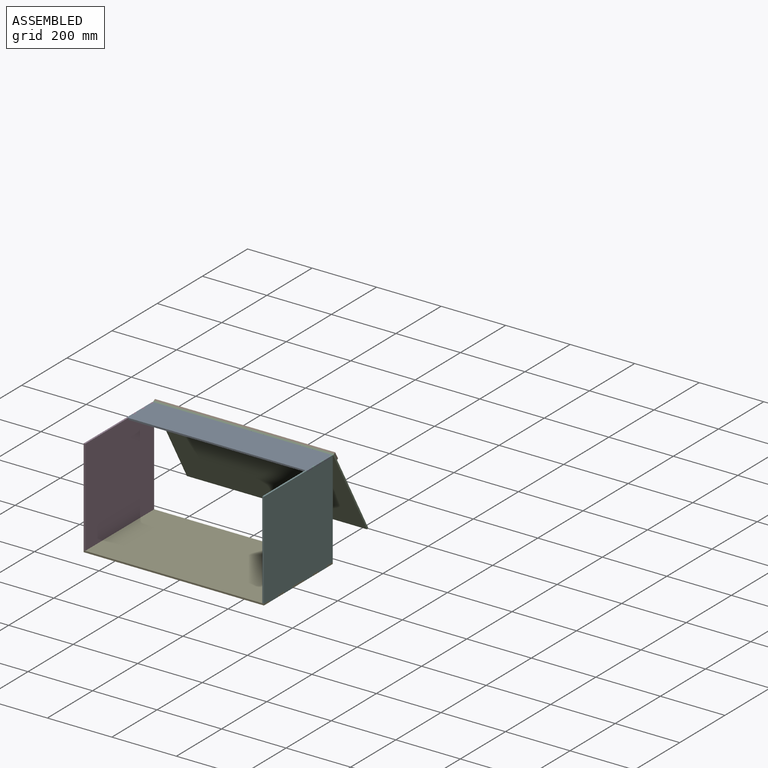
[diagram: assembled view]
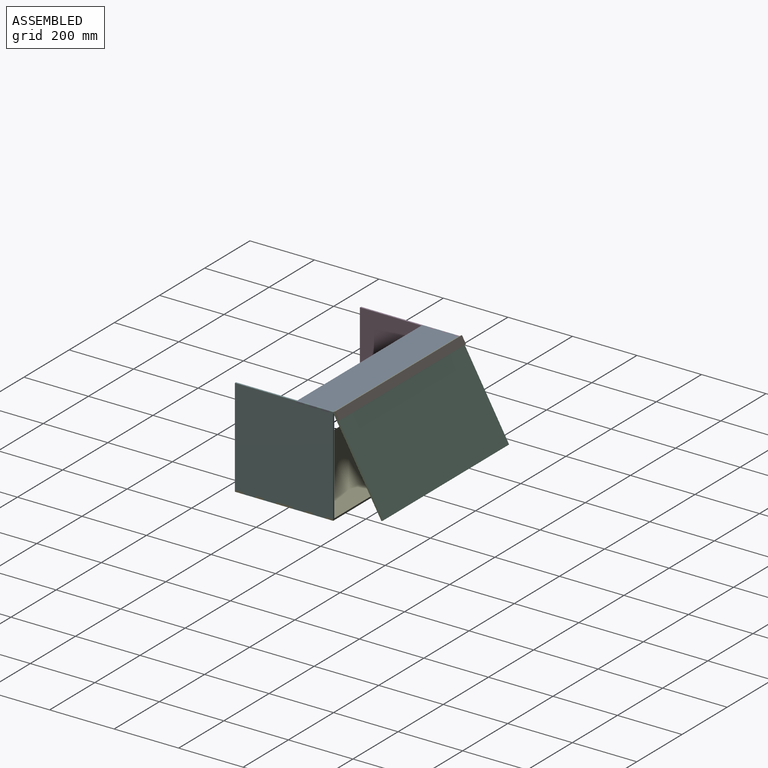
[diagram: assembled view, second angle]
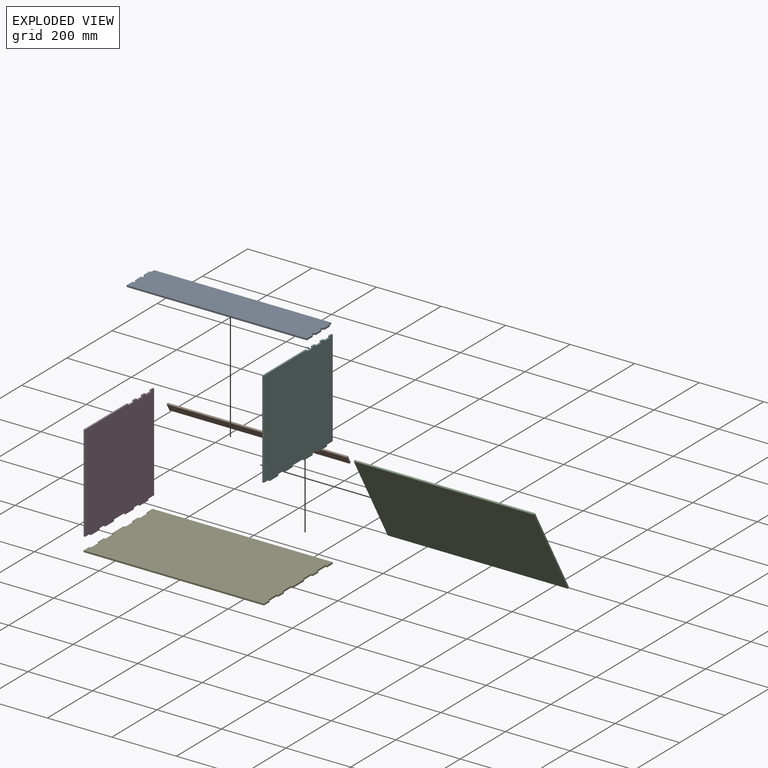
[diagram: exploded view]
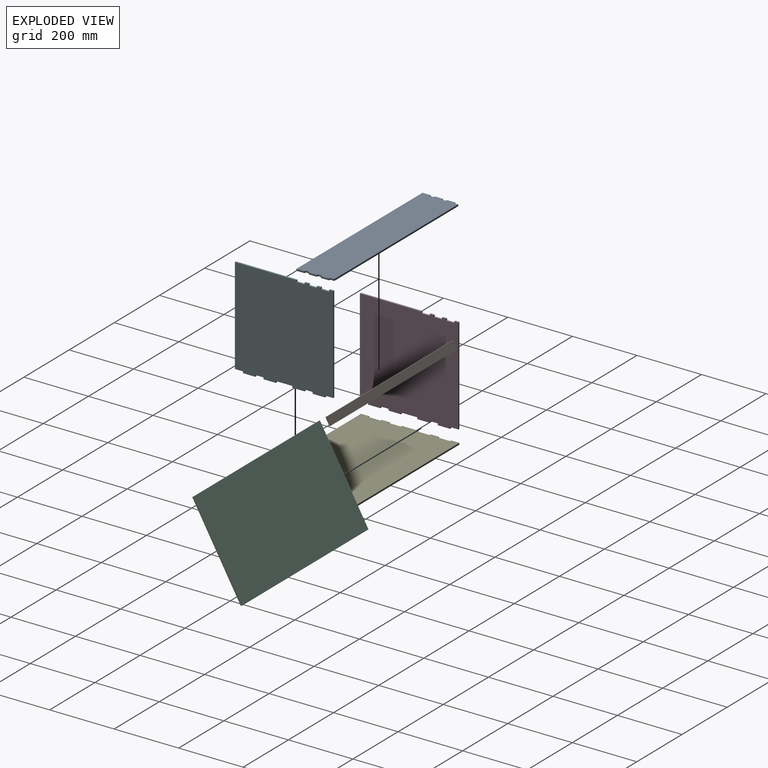
[diagram: exploded view, second angle]
ASSEMBLY  parts=6 mates=4
PART A: 26 faces, bbox 558.8x114.3x5.1 mm
  f0: plane 12.7x5.08mm, normal (1,0,0), area 64.5mm2, adj f1,f23,f24,f25
  f1: plane 548.64x5.08mm, normal (0,1,0), area 2787.1mm2, adj f0,f2,f24,f25
  f2: plane 12.7x5.08mm, normal (-1,0,0), area 64.5mm2, adj f1,f3,f24,f25
  f3: plane 5.08x5.08mm, normal (0,1,0), area 25.8mm2, adj f2,f4,f24,f25
  f4: plane 25.4x5.08mm, normal (-1,0,0), area 129mm2, adj f3,f5,f24,f25
  f5: plane 5.08x5.08mm, normal (0,-1,0), area 25.8mm2, adj f4,f6,f24,f25
  f6: plane 12.7x5.08mm, normal (-1,0,0), area 64.5mm2, adj f5,f7,f24,f25
  f7: plane 5.08x5.08mm, normal (0,1,0), area 25.8mm2, adj f6,f8,f24,f25
  f8: plane 25.4x5.08mm, normal (-1,0,0), area 129mm2, adj f7,f9,f24,f25
  f9: plane 5.08x5.08mm, normal (0,-1,0), area 25.8mm2, adj f8,f10,f24,f25
  f10: plane 12.7x5.08mm, normal (-1,0,0), area 64.5mm2, adj f9,f11,f24,f25
  f11: plane 5.08x5.08mm, normal (0,1,0), area 25.8mm2, adj f10,f12,f24,f25
  f12: plane 25.4x5.08mm, normal (-1,0,0), area 129mm2, adj f11,f13,f24,f25
  f13: plane 558.8x5.08mm, normal (0,-1,0), area 2838.7mm2, adj f12,f14,f24,f25
  f14: plane 25.4x5.08mm, normal (1,0,0), area 129mm2, adj f13,f15,f24,f25
  f15: plane 5.08x5.08mm, normal (0,1,0), area 25.8mm2, adj f14,f16,f24,f25
  f16: plane 12.7x5.08mm, normal (1,0,0), area 64.5mm2, adj f15,f17,f24,f25
  f17: plane 5.08x5.08mm, normal (0,-1,0), area 25.8mm2, adj f16,f18,f24,f25
  f18: plane 25.4x5.08mm, normal (1,0,0), area 129mm2, adj f17,f19,f24,f25
  f19: plane 5.08x5.08mm, normal (0,1,0), area 25.8mm2, adj f18,f20,f24,f25
  f20: plane 12.7x5.08mm, normal (1,0,0), area 64.5mm2, adj f19,f21,f24,f25
  f21: plane 5.08x5.08mm, normal (0,-1,0), area 25.8mm2, adj f20,f22,f24,f25
  f22: plane 25.4x5.08mm, normal (1,0,0), area 129mm2, adj f21,f23,f24,f25
  f23: plane 5.08x5.08mm, normal (0,1,0), area 25.8mm2, adj f0,f22,f24,f25
  f24: plane 558.8x114.3mm, normal (0,0,1), area 63483.7mm2, adj f0,f1,f2,f3,f4,f5,f6,f7
  f25: plane 558.8x114.3mm, normal (0,0,-1), area 63483.7mm2, adj f0,f1,f2,f3,f4,f5,f6,f7
PART B: 6 faces, bbox 558.8x25.4x5.1 mm
  f0: plane 558.8x5.08mm, normal (0,-1,0), area 2838.7mm2, adj f1,f3,f4,f5
  f1: plane 25.4x5.08mm, normal (1,0,0), area 129mm2, adj f0,f2,f4,f5
  f2: plane 558.8x5.08mm, normal (0,1,0), area 2838.7mm2, adj f1,f3,f4,f5
  f3: plane 25.4x5.08mm, normal (-1,0,0), area 129mm2, adj f0,f2,f4,f5
  f4: plane 558.8x25.4mm, normal (0,0,1), area 14193.5mm2, adj f0,f1,f2,f3
  f5: plane 558.8x25.4mm, normal (0,0,-1), area 14193.5mm2, adj f0,f1,f2,f3
PART C: 6 faces, bbox 558.8x304.8x5.1 mm
  f0: plane 558.8x5.08mm, normal (0,-1,0), area 2838.7mm2, adj f1,f3,f4,f5
  f1: plane 304.8x5.08mm, normal (1,0,0), area 1548.4mm2, adj f0,f2,f4,f5
  f2: plane 558.8x5.08mm, normal (0,1,0), area 2838.7mm2, adj f1,f3,f4,f5
  f3: plane 304.8x5.08mm, normal (-1,0,0), area 1548.4mm2, adj f0,f2,f4,f5
  f4: plane 558.8x304.8mm, normal (0,0,1), area 170322.2mm2, adj f0,f1,f2,f3
  f5: plane 558.8x304.8mm, normal (0,0,-1), area 170322.2mm2, adj f0,f1,f2,f3
PART D: 34 faces, bbox 304.8x304.8x5.1 mm
  f0: plane 38.1x5.08mm, normal (-1,0,0), area 193.5mm2, adj f1,f31,f32,f33
  f1: plane 5.08x5.08mm, normal (0,-1,0), area 25.8mm2, adj f0,f2,f32,f33
  f2: plane 25.4x5.08mm, normal (-1,0,0), area 129mm2, adj f1,f3,f32,f33
  f3: plane 5.08x5.08mm, normal (0,1,0), area 25.8mm2, adj f2,f4,f32,f33
  f4: plane 38.1x5.08mm, normal (-1,0,0), area 193.5mm2, adj f3,f5,f32,f33
  f5: plane 5.08x5.08mm, normal (0,-1,0), area 25.8mm2, adj f4,f6,f32,f33
  f6: plane 50.8x5.08mm, normal (-1,0,0), area 258.1mm2, adj f5,f7,f32,f33
  f7: plane 5.08x5.08mm, normal (0,1,0), area 25.8mm2, adj f6,f8,f32,f33
  f8: plane 38.1x5.08mm, normal (-1,0,0), area 193.5mm2, adj f7,f9,f32,f33
  f9: plane 5.08x5.08mm, normal (0,-1,0), area 25.8mm2, adj f8,f10,f32,f33
  f10: plane 25.4x5.08mm, normal (-1,0,0), area 129mm2, adj f9,f11,f32,f33
  f11: plane 5.08x5.08mm, normal (0,1,0), area 25.8mm2, adj f10,f12,f32,f33
  f12: plane 38.1x5.08mm, normal (-1,0,0), area 193.5mm2, adj f11,f13,f32,f33
  f13: plane 5.08x5.08mm, normal (0,-1,0), area 25.8mm2, adj f12,f14,f32,f33
  f14: plane 25.4x5.08mm, normal (-1,0,0), area 129mm2, adj f13,f15,f32,f33
  f15: plane 299.72x5.08mm, normal (0,-1,0), area 1522.6mm2, adj f14,f16,f32,f33
  f16: plane 190.5x5.08mm, normal (1,0,0), area 967.7mm2, adj f15,f17,f32,f33
  f17: plane 5.08x5.08mm, normal (0,1,0), area 25.8mm2, adj f16,f18,f32,f33
  f18: plane 25.4x5.08mm, normal (1,0,0), area 129mm2, adj f17,f19,f32,f33
  f19: plane 5.08x5.08mm, normal (0,-1,0), area 25.8mm2, adj f18,f20,f32,f33
  f20: plane 12.7x5.08mm, normal (1,0,0), area 64.5mm2, adj f19,f21,f32,f33
  f21: plane 5.08x5.08mm, normal (0,1,0), area 25.8mm2, adj f20,f22,f32,f33
  f22: plane 25.4x5.08mm, normal (1,0,0), area 129mm2, adj f21,f23,f32,f33
  f23: plane 5.08x5.08mm, normal (0,-1,0), area 25.8mm2, adj f22,f24,f32,f33
  f24: plane 12.7x5.08mm, normal (1,0,0), area 64.5mm2, adj f23,f25,f32,f33
  f25: plane 5.08x5.08mm, normal (0,1,0), area 25.8mm2, adj f24,f26,f32,f33
  f26: plane 25.4x5.08mm, normal (1,0,0), area 129mm2, adj f25,f27,f32,f33
  f27: plane 5.08x5.08mm, normal (0,-1,0), area 25.8mm2, adj f26,f28,f32,f33
  f28: plane 12.7x5.08mm, normal (1,0,0), area 64.5mm2, adj f27,f29,f32,f33
  f29: plane 299.72x5.08mm, normal (0,1,0), area 1522.6mm2, adj f28,f30,f32,f33
  f30: plane 25.4x5.08mm, normal (-1,0,0), area 129mm2, adj f29,f31,f32,f33
  f31: plane 5.08x5.08mm, normal (0,1,0), area 25.8mm2, adj f0,f30,f32,f33
  f32: plane 304.8x304.8mm, normal (0,0,1), area 91741.8mm2, adj f0,f1,f2,f3,f4,f5,f6,f7
  f33: plane 304.8x304.8mm, normal (0,0,-1), area 91741.8mm2, adj f0,f1,f2,f3,f4,f5,f6,f7
PART E: 38 faces, bbox 558.8x304.8x5.1 mm
  f0: plane 25.4x5.08mm, normal (-1,0,0), area 129mm2, adj f1,f35,f36,f37
  f1: plane 5.08x5.08mm, normal (0,-1,0), area 25.8mm2, adj f0,f2,f36,f37
  f2: plane 38.1x5.08mm, normal (-1,0,0), area 193.5mm2, adj f1,f3,f36,f37
  f3: plane 5.08x5.08mm, normal (0,1,0), area 25.8mm2, adj f2,f4,f36,f37
  f4: plane 25.4x5.08mm, normal (-1,0,0), area 129mm2, adj f3,f5,f36,f37
  f5: plane 5.08x5.08mm, normal (0,-1,0), area 25.8mm2, adj f4,f6,f36,f37
  f6: plane 38.1x5.08mm, normal (-1,0,0), area 193.5mm2, adj f5,f7,f36,f37
  f7: plane 5.08x5.08mm, normal (0,1,0), area 25.8mm2, adj f6,f8,f36,f37
  f8: plane 50.8x5.08mm, normal (-1,0,0), area 258.1mm2, adj f7,f9,f36,f37
  f9: plane 5.08x5.08mm, normal (0,-1,0), area 25.8mm2, adj f8,f10,f36,f37
  f10: plane 38.1x5.08mm, normal (-1,0,0), area 193.5mm2, adj f9,f11,f36,f37
  f11: plane 5.08x5.08mm, normal (0,1,0), area 25.8mm2, adj f10,f12,f36,f37
  f12: plane 25.4x5.08mm, normal (-1,0,0), area 129mm2, adj f11,f13,f36,f37
  f13: plane 5.08x5.08mm, normal (0,-1,0), area 25.8mm2, adj f12,f14,f36,f37
  f14: plane 38.1x5.08mm, normal (-1,0,0), area 193.5mm2, adj f13,f15,f36,f37
  f15: plane 5.08x5.08mm, normal (0,1,0), area 25.8mm2, adj f14,f16,f36,f37
  f16: plane 25.4x5.08mm, normal (-1,0,0), area 129mm2, adj f15,f17,f36,f37
  f17: plane 558.8x5.08mm, normal (0,-1,0), area 2838.7mm2, adj f16,f18,f36,f37
  f18: plane 25.4x5.08mm, normal (1,0,0), area 129mm2, adj f17,f19,f36,f37
  f19: plane 5.08x5.08mm, normal (0,1,0), area 25.8mm2, adj f18,f20,f36,f37
  f20: plane 38.1x5.08mm, normal (1,0,0), area 193.5mm2, adj f19,f21,f36,f37
  f21: plane 5.08x5.08mm, normal (0,-1,0), area 25.8mm2, adj f20,f22,f36,f37
  f22: plane 25.4x5.08mm, normal (1,0,0), area 129mm2, adj f21,f23,f36,f37
  f23: plane 5.08x5.08mm, normal (0,1,0), area 25.8mm2, adj f22,f24,f36,f37
  f24: plane 38.1x5.08mm, normal (1,0,0), area 193.5mm2, adj f23,f25,f36,f37
  f25: plane 5.08x5.08mm, normal (0,-1,0), area 25.8mm2, adj f24,f26,f36,f37
  f26: plane 50.8x5.08mm, normal (1,0,0), area 258.1mm2, adj f25,f27,f36,f37
  f27: plane 5.08x5.08mm, normal (0,1,0), area 25.8mm2, adj f26,f28,f36,f37
  f28: plane 38.1x5.08mm, normal (1,0,0), area 193.5mm2, adj f27,f29,f36,f37
  f29: plane 5.08x5.08mm, normal (0,-1,0), area 25.8mm2, adj f28,f30,f36,f37
  f30: plane 25.4x5.08mm, normal (1,0,0), area 129mm2, adj f29,f31,f36,f37
  f31: plane 5.08x5.08mm, normal (0,1,0), area 25.8mm2, adj f30,f32,f36,f37
  f32: plane 38.1x5.08mm, normal (1,0,0), area 193.5mm2, adj f31,f33,f36,f37
  f33: plane 5.08x5.08mm, normal (0,-1,0), area 25.8mm2, adj f32,f34,f36,f37
  f34: plane 25.4x5.08mm, normal (1,0,0), area 129mm2, adj f33,f35,f36,f37
  f35: plane 558.8x5.08mm, normal (0,1,0), area 2838.7mm2, adj f0,f34,f36,f37
  f36: plane 558.8x304.8mm, normal (0,0,1), area 168773.9mm2, adj f0,f1,f2,f3,f4,f5,f6,f7
  f37: plane 558.8x304.8mm, normal (0,0,-1), area 168773.9mm2, adj f0,f1,f2,f3,f4,f5,f6,f7
PART F: same geometry as D
PLACE A t=(-1.91,95.83,296.9)mm
PLACE B rot(axis=(0,0.86,-0.5),180deg) t=(-0.67,168.09,295.95)mm
PLACE C rot(axis=(1,0,0),119.6deg) t=(-0.67,232.69,171.99)mm
PLACE D rot(axis=(0,-1,0),90deg) t=(-276.23,0.58,149.58)mm
PLACE E t=(-1.91,0.58,-2.82)mm fixed
PLACE F rot(axis=(0,-1,0),90deg) t=(277.49,0.58,149.58)mm
MATE fastened F.f6 <-> E.f36  axis (0,0,-1) through (274.95,0.58,2.26)mm
MATE fastened D.f6 <-> E.f36  axis (0,0,-1) through (-278.77,0.58,2.26)mm
MATE fastened F.f22 <-> A.f25  axis (0,0,1) through (274.95,89.48,296.9)mm
MATE fastened B.f4 <-> C.f5  axis (0,-0.87,-0.49) through (-0.67,157.4,304.49)mm
